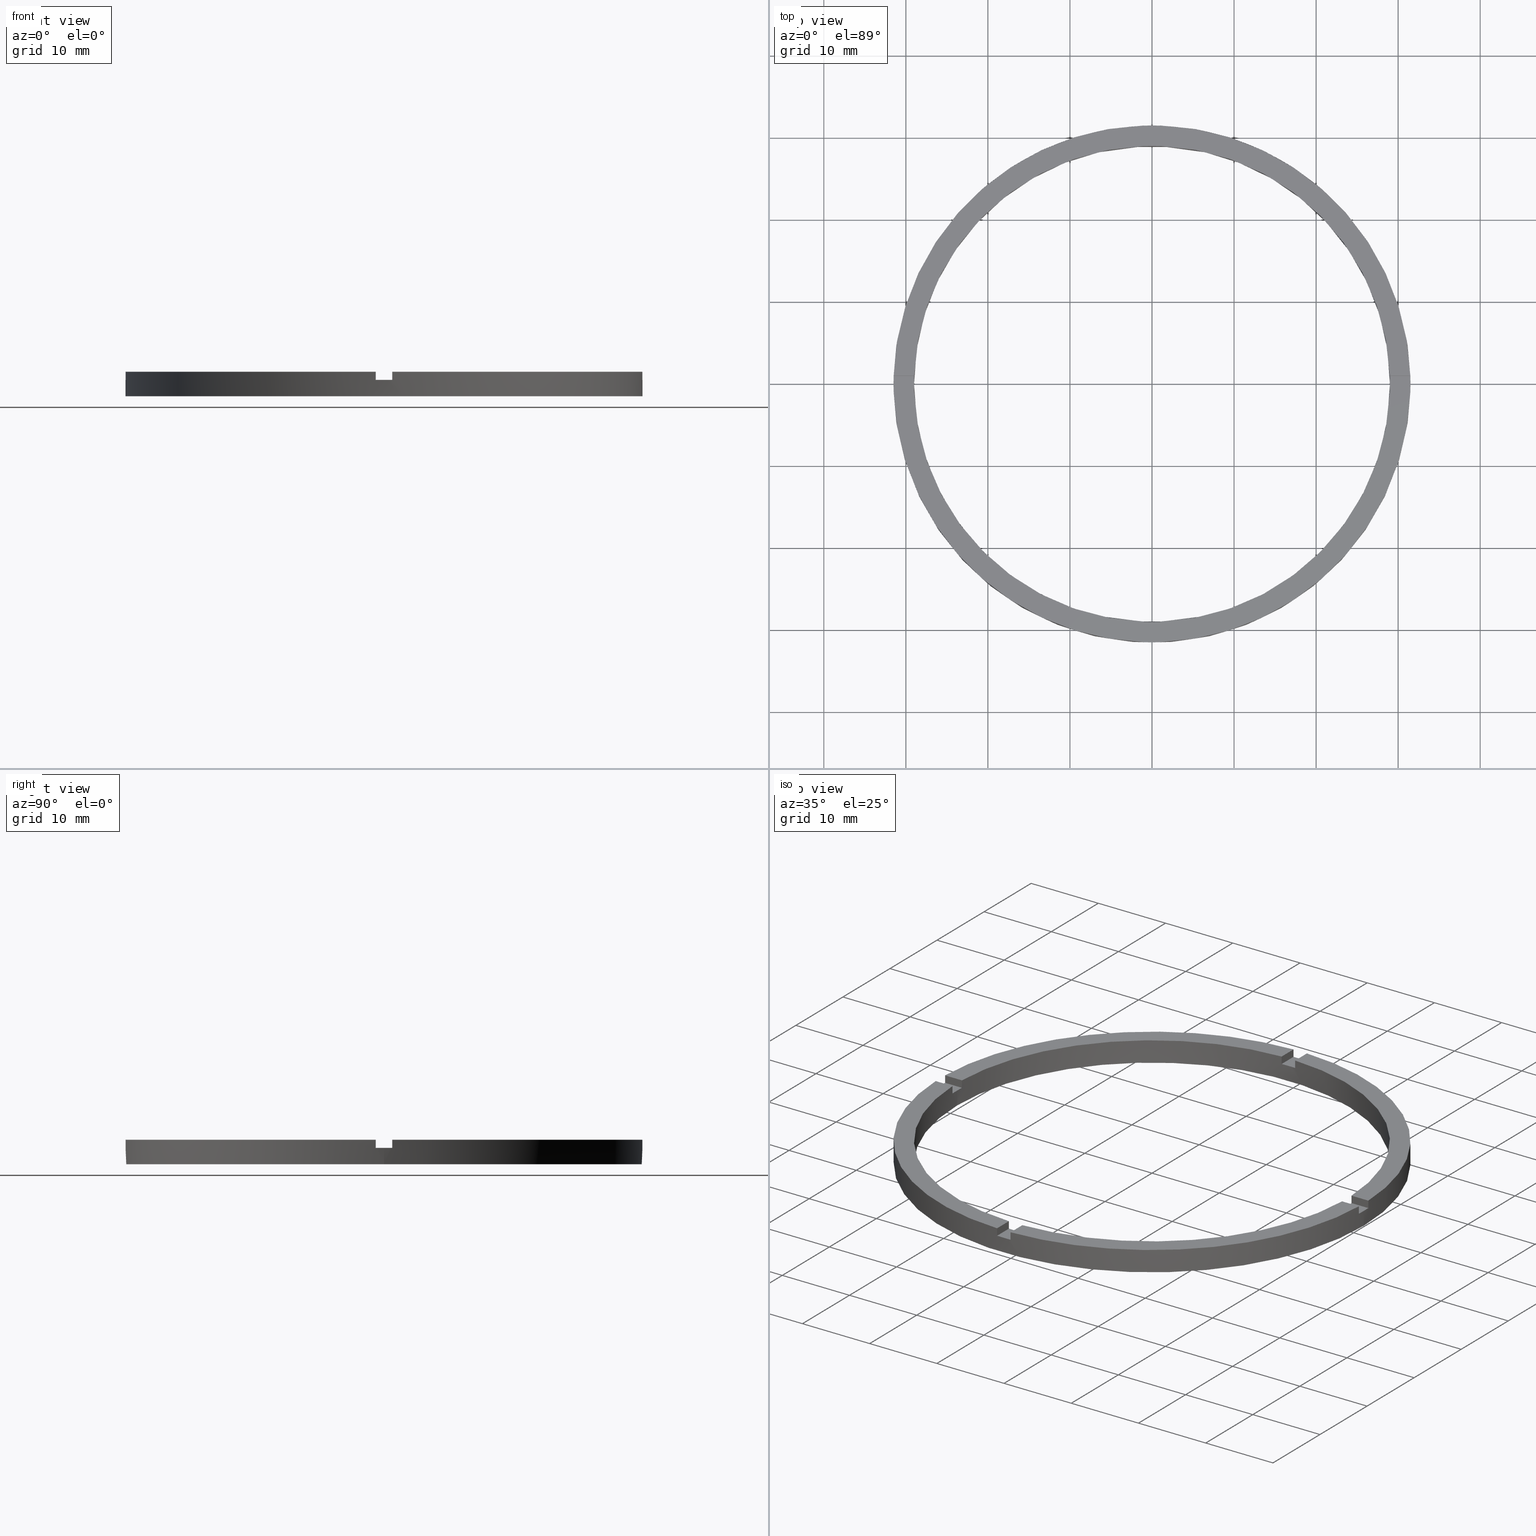
[diagram: canonical four-view strip — front | top / right | iso, engineering-drawing reading convention]
A machine part, canonical four-view strip (front | top / right | iso — engineering-drawing reading convention). The complete STEP part file that produces these views, byte-faithful:
ISO-10303-21;
HEADER;
FILE_DESCRIPTION (( 'STEP AP203' ),
    '1' );
FILE_NAME ('514131.step',
    '2024-12-26T02:40:29',
    ( 'MSI' ),
    ( '' ),
    'SwSTEP 2.0',
    'SolidWorks 2020',
    '' );
FILE_SCHEMA (( 'CONFIG_CONTROL_DESIGN' ));
ENDSEC;

DATA;
#1 = EDGE_LOOP ( 'NONE', ( #5, #175, #748, #690 ) ) ;
#2 = ORIENTED_EDGE ( 'NONE', *, *, #430, .T. ) ;
#3 = ORIENTED_EDGE ( 'NONE', *, *, #610, .T. ) ;
#4 = MANIFOLD_SOLID_BREP ( '�г�-����1', #243 ) ;
#5 = ORIENTED_EDGE ( 'NONE', *, *, #590, .F. ) ;
#6 = DIRECTION ( 'NONE',  ( 1.000000000000000000, 0.000000000000000000, 0.000000000000000000 ) ) ;
#7 = APPLICATION_PROTOCOL_DEFINITION ( 'international standard', 'config_control_design', 1994, #713 ) ;
#8 = DIRECTION ( 'NONE',  ( 1.000000000000000000, 0.000000000000000000, 0.000000000000000000 ) ) ;
#9 = PLANE ( 'NONE',  #244 ) ;
#10 = AXIS2_PLACEMENT_3D ( 'NONE', #635, #280, #287 ) ;
#11 = CARTESIAN_POINT ( 'NONE',  ( 31.48412298286233479, 0.9999999999998414602, 2.000000000000000000 ) ) ;
#12 = AXIS2_PLACEMENT_3D ( 'NONE', #755, #42, #539 ) ;
#13 = DIRECTION ( 'NONE',  ( 0.000000000000000000, 0.000000000000000000, 1.000000000000000000 ) ) ;
#14 = EDGE_CURVE ( 'NONE', #264, #201, #422, .T. ) ;
#15 = AXIS2_PLACEMENT_3D ( 'NONE', #52, #56, #446 ) ;
#16 = CARTESIAN_POINT ( 'NONE',  ( 0.9999999999998382405, -28.98275349237888321, 3.000000000000000000 ) ) ;
#17 = VECTOR ( 'NONE', #274, 1000.000000000000000 ) ;
#18 = CARTESIAN_POINT ( 'NONE',  ( 0.000000000000000000, 0.000000000000000000, 3.000000000000000000 ) ) ;
#19 = ORIENTED_EDGE ( 'NONE', *, *, #268, .F. ) ;
#20 = EDGE_CURVE ( 'NONE', #289, #250, #675, .T. ) ;
#21 = DIRECTION ( 'NONE',  ( -0.000000000000000000, -0.000000000000000000, -1.000000000000000000 ) ) ;
#22 = LINE ( 'NONE', #16, #295 ) ;
#23 = VERTEX_POINT ( 'NONE', #662 ) ;
#24 = VERTEX_POINT ( 'NONE', #733 ) ;
#25 = CC_DESIGN_PERSON_AND_ORGANIZATION_ASSIGNMENT ( #134, #656, ( #537 ) ) ;
#26 = PLANE ( 'NONE',  #469 ) ;
#27 = DIRECTION ( 'NONE',  ( 1.000000000000000000, 1.951563910473908228E-16, -0.000000000000000000 ) ) ;
#28 = CC_DESIGN_SECURITY_CLASSIFICATION ( #647, ( #416 ) ) ;
#29 = VERTEX_POINT ( 'NONE', #71 ) ;
#30 = CARTESIAN_POINT ( 'NONE',  ( -31.48412298286233124, 0.9999999999999742428, 3.000000000000000000 ) ) ;
#31 = PLANE ( 'NONE',  #403 ) ;
#32 = EDGE_LOOP ( 'NONE', ( #470, #450, #317, #457, #547, #167, #749, #491, #443, #499, #717, #742 ) ) ;
#33 = ORIENTED_EDGE ( 'NONE', *, *, #370, .T. ) ;
#34 = ORIENTED_EDGE ( 'NONE', *, *, #109, .T. ) ;
#35 = EDGE_LOOP ( 'NONE', ( #39, #760, #698, #493 ) ) ;
#36 = DIRECTION ( 'NONE',  ( 1.000000000000000000, 0.000000000000000000, 0.000000000000000000 ) ) ;
#37 = VERTEX_POINT ( 'NONE', #614 ) ;
#38 = ORIENTED_EDGE ( 'NONE', *, *, #242, .F. ) ;
#39 = ORIENTED_EDGE ( 'NONE', *, *, #232, .T. ) ;
#40 = VERTEX_POINT ( 'NONE', #74 ) ;
#41 = DIRECTION ( 'NONE',  ( 1.000000000000000000, 0.000000000000000000, 0.000000000000000000 ) ) ;
#42 = DIRECTION ( 'NONE',  ( 0.000000000000000000, 0.000000000000000000, 1.000000000000000000 ) ) ;
#43 = CARTESIAN_POINT ( 'NONE',  ( -1.000000000000161871, -28.98275349237887255, 3.000000000000000000 ) ) ;
#44 = ORIENTED_EDGE ( 'NONE', *, *, #765, .F. ) ;
#45 = VECTOR ( 'NONE', #425, 1000.000000000000000 ) ;
#46 = ADVANCED_FACE ( 'NONE', ( #165 ), #9, .F. ) ;
#47 = CIRCLE ( 'NONE', #144, 29.00000000000000000 ) ;
#48 = ORIENTED_EDGE ( 'NONE', *, *, #716, .F. ) ;
#49 = DIRECTION ( 'NONE',  ( 0.000000000000000000, 0.000000000000000000, 1.000000000000000000 ) ) ;
#50 = FACE_OUTER_BOUND ( 'NONE', #185, .T. ) ;
#51 = VERTEX_POINT ( 'NONE', #712 ) ;
#52 = CARTESIAN_POINT ( 'NONE',  ( 0.000000000000000000, 0.000000000000000000, 0.000000000000000000 ) ) ;
#53 = AXIS2_PLACEMENT_3D ( 'NONE', #490, #444, #664 ) ;
#54 = EDGE_CURVE ( 'NONE', #29, #451, #160, .T. ) ;
#55 = AXIS2_PLACEMENT_3D ( 'NONE', #428, #113, #57 ) ;
#56 = DIRECTION ( 'NONE',  ( 0.000000000000000000, 0.000000000000000000, 1.000000000000000000 ) ) ;
#57 = DIRECTION ( 'NONE',  ( 1.000000000000000000, 0.000000000000000000, 0.000000000000000000 ) ) ;
#58 = CARTESIAN_POINT ( 'NONE',  ( -31.50000000000000000, 0.000000000000000000, 2.000000000000000000 ) ) ;
#59 = DIRECTION ( 'NONE',  ( -1.000000000000000000, 0.000000000000000000, 0.000000000000000000 ) ) ;
#60 = CARTESIAN_POINT ( 'NONE',  ( -1.000000000000162759, -21.50000000000017764, 2.000000000000000000 ) ) ;
#61 = EDGE_CURVE ( 'NONE', #548, #37, #172, .T. ) ;
#62 = PLANE ( 'NONE',  #223 ) ;
#63 = DIRECTION ( 'NONE',  ( 0.000000000000000000, 0.000000000000000000, 1.000000000000000000 ) ) ;
#64 = CARTESIAN_POINT ( 'NONE',  ( -1.000000000000024425, 31.48412298286233124, 2.000000000000000000 ) ) ;
#65 = DIRECTION ( 'NONE',  ( 1.000000000000000000, 6.505213034913022906E-17, 0.000000000000000000 ) ) ;
#66 = CARTESIAN_POINT ( 'NONE',  ( 29.00000000000000000, 3.551475717527324030E-15, 3.000000000000000000 ) ) ;
#67 = CARTESIAN_POINT ( 'NONE',  ( 0.9999999999999754641, 28.98275349237887966, 3.000000000000000000 ) ) ;
#68 = DIRECTION ( 'NONE',  ( 0.000000000000000000, 0.000000000000000000, 1.000000000000000000 ) ) ;
#69 =( GEOMETRIC_REPRESENTATION_CONTEXT ( 3 ) GLOBAL_UNCERTAINTY_ASSIGNED_CONTEXT ( ( #630 ) ) GLOBAL_UNIT_ASSIGNED_CONTEXT ( ( #417, #587, #653 ) ) REPRESENTATION_CONTEXT ( 'NONE', 'WORKASPACE' ) );
#70 = DIRECTION ( 'NONE',  ( 1.000000000000000000, 0.000000000000000000, 0.000000000000000000 ) ) ;
#71 = CARTESIAN_POINT ( 'NONE',  ( 31.48412298286233479, 0.9999999999998414602, 3.000000000000000000 ) ) ;
#72 = CARTESIAN_POINT ( 'NONE',  ( -21.50000000000018119, -1.000000000000023981, 2.000000000000000000 ) ) ;
#73 = DIRECTION ( 'NONE',  ( 1.000000000000000000, 0.000000000000000000, -0.000000000000000000 ) ) ;
#74 = CARTESIAN_POINT ( 'NONE',  ( 0.9999999999998382405, -28.98275349237888321, 3.000000000000000000 ) ) ;
#75 = DIRECTION ( 'NONE',  ( -0.000000000000000000, -0.000000000000000000, -1.000000000000000000 ) ) ;
#76 = EDGE_CURVE ( 'NONE', #548, #297, #426, .T. ) ;
#77 = VECTOR ( 'NONE', #363, 1000.000000000000000 ) ;
#78 = CIRCLE ( 'NONE', #293, 29.00000000000000000 ) ;
#79 = EDGE_CURVE ( 'NONE', #250, #449, #689, .T. ) ;
#80 = VECTOR ( 'NONE', #75, 1000.000000000000000 ) ;
#81 = VECTOR ( 'NONE', #301, 1000.000000000000000 ) ;
#82 = FACE_OUTER_BOUND ( 'NONE', #246, .T. ) ;
#83 = DIRECTION ( 'NONE',  ( 0.000000000000000000, 0.000000000000000000, 1.000000000000000000 ) ) ;
#84 = DIRECTION ( 'NONE',  ( 0.000000000000000000, -0.000000000000000000, 1.000000000000000000 ) ) ;
#85 = PLANE ( 'NONE',  #697 ) ;
#86 = LINE ( 'NONE', #703, #595 ) ;
#87 = EDGE_CURVE ( 'NONE', #266, #550, #684, .T. ) ;
#88 = CIRCLE ( 'NONE', #15, 29.00000000000000000 ) ;
#89 = LINE ( 'NONE', #239, #81 ) ;
#90 = DIRECTION ( 'NONE',  ( -0.000000000000000000, -0.000000000000000000, -1.000000000000000000 ) ) ;
#91 = CARTESIAN_POINT ( 'NONE',  ( 0.000000000000000000, 0.000000000000000000, 2.000000000000000000 ) ) ;
#92 = VECTOR ( 'NONE', #146, 1000.000000000000000 ) ;
#93 = VECTOR ( 'NONE', #90, 1000.000000000000000 ) ;
#94 = CIRCLE ( 'NONE', #663, 31.50000000000000000 ) ;
#95 = VECTOR ( 'NONE', #231, 1000.000000000000000 ) ;
#96 = PLANE ( 'NONE',  #475 ) ;
#97 = CIRCLE ( 'NONE', #263, 31.50000000000000000 ) ;
#98 = LINE ( 'NONE', #255, #77 ) ;
#99 = AXIS2_PLACEMENT_3D ( 'NONE', #281, #84, #532 ) ;
#100 = LINE ( 'NONE', #676, #80 ) ;
#101 = CIRCLE ( 'NONE', #421, 31.50000000000000000 ) ;
#102 = DIRECTION ( 'NONE',  ( 0.000000000000000000, 0.000000000000000000, 1.000000000000000000 ) ) ;
#103 = AXIS2_PLACEMENT_3D ( 'NONE', #628, #83, #575 ) ;
#104 = FACE_OUTER_BOUND ( 'NONE', #200, .T. ) ;
#105 = FACE_BOUND ( 'NONE', #729, .T. ) ;
#106 = VECTOR ( 'NONE', #188, 1000.000000000000000 ) ;
#107 = AXIS2_PLACEMENT_3D ( 'NONE', #445, #525, #576 ) ;
#108 = LOCAL_TIME ( 10, 40, 29.00000000000000000, #396 ) ;
#109 = EDGE_CURVE ( 'NONE', #297, #447, #163, .T. ) ;
#110 = AXIS2_PLACEMENT_3D ( 'NONE', #319, #126, #240 ) ;
#111 = LOCAL_TIME ( 10, 40, 29.00000000000000000, #132 ) ;
#112 = DIRECTION ( 'NONE',  ( 0.000000000000000000, -0.000000000000000000, 1.000000000000000000 ) ) ;
#113 = DIRECTION ( 'NONE',  ( -0.000000000000000000, 0.000000000000000000, 1.000000000000000000 ) ) ;
#114 = APPROVAL_DATE_TIME ( #633, #657 ) ;
#115 = APPROVAL_PERSON_ORGANIZATION ( #642, #657, #142 ) ;
#116 = EDGE_CURVE ( 'NONE', #559, #261, #448, .T. ) ;
#117 = CIRCLE ( 'NONE', #333, 31.50000000000000000 ) ;
#118 = DATE_AND_TIME ( #638, #392 ) ;
#119 = DIRECTION ( 'NONE',  ( -0.000000000000000000, -0.000000000000000000, -1.000000000000000000 ) ) ;
#120 = DATE_AND_TIME ( #408, #130 ) ;
#121 = CARTESIAN_POINT ( 'NONE',  ( 21.49999999999999645, 0.9999999999998409050, 3.000000000000000000 ) ) ;
#122 = MECHANICAL_CONTEXT ( 'NONE', #545, 'mechanical' ) ;
#123 = PERSON_AND_ORGANIZATION ( #766, #637 ) ;
#124 = EDGE_CURVE ( 'NONE', #289, #732, #686, .T. ) ;
#125 = COORDINATED_UNIVERSAL_TIME_OFFSET ( 8, 0, .AHEAD. ) ;
#126 = DIRECTION ( 'NONE',  ( 0.000000000000000000, 0.000000000000000000, 1.000000000000000000 ) ) ;
#127 = EDGE_CURVE ( 'NONE', #773, #266, #693, .T. ) ;
#128 = DIRECTION ( 'NONE',  ( 1.000000000000000000, 1.951563910473908228E-16, -0.000000000000000000 ) ) ;
#129 = CARTESIAN_POINT ( 'NONE',  ( 0.9999999999998373523, -21.50000000000017764, 2.000000000000000000 ) ) ;
#130 = LOCAL_TIME ( 10, 40, 29.00000000000000000, #125 ) ;
#131 = CARTESIAN_POINT ( 'NONE',  ( 0.000000000000000000, 0.000000000000000000, 3.000000000000000000 ) ) ;
#132 = COORDINATED_UNIVERSAL_TIME_OFFSET ( 8, 0, .AHEAD. ) ;
#133 = DIRECTION ( 'NONE',  ( 0.000000000000000000, 0.000000000000000000, 1.000000000000000000 ) ) ;
#134 = PERSON_AND_ORGANIZATION ( #766, #637 ) ;
#135 = DIRECTION ( 'NONE',  ( 1.000000000000000000, 1.301042606982605074E-16, 0.000000000000000000 ) ) ;
#136 = DIRECTION ( 'NONE',  ( -1.951563910473908228E-16, 1.000000000000000000, 0.000000000000000000 ) ) ;
#137 = CALENDAR_DATE ( 2024, 26, 12 ) ;
#138 = CARTESIAN_POINT ( 'NONE',  ( 0.000000000000000000, 0.000000000000000000, 2.000000000000000000 ) ) ;
#139 = DIRECTION ( 'NONE',  ( 1.301042606982605074E-16, -1.000000000000000000, 0.000000000000000000 ) ) ;
#140 = AXIS2_PLACEMENT_3D ( 'NONE', #18, #13, #502 ) ;
#141 = DIRECTION ( 'NONE',  ( -1.000000000000000000, -6.505213034913022906E-17, 0.000000000000000000 ) ) ;
#142 = APPROVAL_ROLE ( '' ) ;
#143 = AXIS2_PLACEMENT_3D ( 'NONE', #91, #225, #344 ) ;
#144 = AXIS2_PLACEMENT_3D ( 'NONE', #437, #570, #736 ) ;
#145 = CARTESIAN_POINT ( 'NONE',  ( -31.50000000000000000, 0.000000000000000000, 3.000000000000000000 ) ) ;
#146 = DIRECTION ( 'NONE',  ( -1.000000000000000000, -1.951563910473908228E-16, 0.000000000000000000 ) ) ;
#147 = AXIS2_PLACEMENT_3D ( 'NONE', #629, #737, #141 ) ;
#148 = ADVANCED_FACE ( 'NONE', ( #435 ), #440, .F. ) ;
#149 = EDGE_CURVE ( 'NONE', #510, #449, #174, .T. ) ;
#150 = PLANE ( 'NONE',  #147 ) ;
#151 = DATE_TIME_ROLE ( 'creation_date' ) ;
#152 = EDGE_CURVE ( 'NONE', #23, #205, #177, .T. ) ;
#153 = CARTESIAN_POINT ( 'NONE',  ( -31.48412298286233124, -1.000000000000025757, 2.000000000000000000 ) ) ;
#154 = EDGE_CURVE ( 'NONE', #769, #778, #464, .T. ) ;
#155 = CC_DESIGN_APPROVAL ( #677, ( #647 ) ) ;
#156 = ORIENTED_EDGE ( 'NONE', *, *, #777, .T. ) ;
#157 = VECTOR ( 'NONE', #27, 1000.000000000000000 ) ;
#158 = DIRECTION ( 'NONE',  ( 1.000000000000000000, 0.000000000000000000, 0.000000000000000000 ) ) ;
#159 = CARTESIAN_POINT ( 'NONE',  ( -28.98275349237887610, -1.000000000000025313, 2.000000000000000000 ) ) ;
#160 = LINE ( 'NONE', #121, #434 ) ;
#161 = CARTESIAN_POINT ( 'NONE',  ( 28.98275349237887255, -1.000000000000158540, 2.000000000000000000 ) ) ;
#162 = CARTESIAN_POINT ( 'NONE',  ( 0.000000000000000000, 0.000000000000000000, 2.000000000000000000 ) ) ;
#163 = CIRCLE ( 'NONE', #655, 31.50000000000000000 ) ;
#164 = ORIENTED_EDGE ( 'NONE', *, *, #673, .T. ) ;
#165 = FACE_OUTER_BOUND ( 'NONE', #35, .T. ) ;
#166 = ADVANCED_BREP_SHAPE_REPRESENTATION ( '514131', ( #4, #752 ), #69 ) ;
#167 = ORIENTED_EDGE ( 'NONE', *, *, #79, .F. ) ;
#168 = DIRECTION ( 'NONE',  ( 1.000000000000000000, 0.000000000000000000, 0.000000000000000000 ) ) ;
#169 = VECTOR ( 'NONE', #284, 1000.000000000000000 ) ;
#170 = DIRECTION ( 'NONE',  ( 0.000000000000000000, 0.000000000000000000, 1.000000000000000000 ) ) ;
#171 = ORIENTED_EDGE ( 'NONE', *, *, #76, .F. ) ;
#172 = CIRCLE ( 'NONE', #685, 29.00000000000000000 ) ;
#173 = ORIENTED_EDGE ( 'NONE', *, *, #409, .T. ) ;
#174 = LINE ( 'NONE', #365, #692 ) ;
#175 = ORIENTED_EDGE ( 'NONE', *, *, #757, .T. ) ;
#176 = CARTESIAN_POINT ( 'NONE',  ( 0.000000000000000000, 0.000000000000000000, 2.000000000000000000 ) ) ;
#177 = LINE ( 'NONE', #497, #196 ) ;
#178 = AXIS2_PLACEMENT_3D ( 'NONE', #666, #668, #70 ) ;
#179 = ORIENTED_EDGE ( 'NONE', *, *, #479, .F. ) ;
#180 = DIRECTION ( 'NONE',  ( -1.301042606982605074E-16, 1.000000000000000000, 0.000000000000000000 ) ) ;
#181 = ORIENTED_EDGE ( 'NONE', *, *, #285, .F. ) ;
#182 = DIRECTION ( 'NONE',  ( -0.000000000000000000, -0.000000000000000000, -1.000000000000000000 ) ) ;
#183 = ORIENTED_EDGE ( 'NONE', *, *, #336, .T. ) ;
#184 = EDGE_CURVE ( 'NONE', #776, #510, #117, .T. ) ;
#185 = EDGE_LOOP ( 'NONE', ( #290, #218, #237, #19 ) ) ;
#186 = CARTESIAN_POINT ( 'NONE',  ( 0.9999999999998386846, -31.48412298286233479, 3.000000000000000000 ) ) ;
#187 = CC_DESIGN_PERSON_AND_ORGANIZATION_ASSIGNMENT ( #390, #193, ( #416 ) ) ;
#188 = DIRECTION ( 'NONE',  ( -0.000000000000000000, -0.000000000000000000, -1.000000000000000000 ) ) ;
#189 = DIRECTION ( 'NONE',  ( 1.000000000000000000, 0.000000000000000000, 0.000000000000000000 ) ) ;
#190 = EDGE_CURVE ( 'NONE', #451, #772, #378, .T. ) ;
#191 = ORIENTED_EDGE ( 'NONE', *, *, #154, .T. ) ;
#192 = ORIENTED_EDGE ( 'NONE', *, *, #777, .F. ) ;
#193 = PERSON_AND_ORGANIZATION_ROLE ( 'creator' ) ;
#194 = ORIENTED_EDGE ( 'NONE', *, *, #127, .F. ) ;
#195 = CARTESIAN_POINT ( 'NONE',  ( 0.000000000000000000, 0.000000000000000000, 3.000000000000000000 ) ) ;
#196 = VECTOR ( 'NONE', #556, 1000.000000000000000 ) ;
#197 = ORIENTED_EDGE ( 'NONE', *, *, #615, .F. ) ;
#198 = CARTESIAN_POINT ( 'NONE',  ( 0.000000000000000000, 0.000000000000000000, 2.000000000000000000 ) ) ;
#199 = EDGE_CURVE ( 'NONE', #773, #509, #388, .T. ) ;
#200 = EDGE_LOOP ( 'NONE', ( #233, #467, #308, #738 ) ) ;
#201 = VERTEX_POINT ( 'NONE', #726 ) ;
#202 = ORIENTED_EDGE ( 'NONE', *, *, #771, .T. ) ;
#203 = DIRECTION ( 'NONE',  ( -1.000000000000000000, -6.505213034913022906E-17, -0.000000000000000000 ) ) ;
#204 = DIRECTION ( 'NONE',  ( -0.000000000000000000, -0.000000000000000000, -1.000000000000000000 ) ) ;
#205 = VERTEX_POINT ( 'NONE', #328 ) ;
#206 = ORIENTED_EDGE ( 'NONE', *, *, #277, .F. ) ;
#207 = DIRECTION ( 'NONE',  ( 0.000000000000000000, 0.000000000000000000, 1.000000000000000000 ) ) ;
#208 = DIRECTION ( 'NONE',  ( 1.000000000000000000, 0.000000000000000000, 0.000000000000000000 ) ) ;
#209 = ORIENTED_EDGE ( 'NONE', *, *, #651, .T. ) ;
#210 = ORIENTED_EDGE ( 'NONE', *, *, #780, .F. ) ;
#211 = ORIENTED_EDGE ( 'NONE', *, *, #673, .F. ) ;
#212 = CARTESIAN_POINT ( 'NONE',  ( 0.000000000000000000, 0.000000000000000000, 0.000000000000000000 ) ) ;
#213 = ORIENTED_EDGE ( 'NONE', *, *, #580, .F. ) ;
#214 = EDGE_LOOP ( 'NONE', ( #202, #699, #463, #236, #753, #458 ) ) ;
#215 = DATE_TIME_ROLE ( 'classification_date' ) ;
#216 = AXIS2_PLACEMENT_3D ( 'NONE', #357, #648, #59 ) ;
#217 = ORIENTED_EDGE ( 'NONE', *, *, #116, .F. ) ;
#218 = ORIENTED_EDGE ( 'NONE', *, *, #780, .T. ) ;
#219 = CARTESIAN_POINT ( 'NONE',  ( 31.50000000000000000, 3.857637417314162689E-15, 3.000000000000000000 ) ) ;
#220 = ADVANCED_FACE ( 'NONE', ( #104 ), #524, .T. ) ;
#221 = DIRECTION ( 'NONE',  ( 1.301042606982605074E-16, -1.000000000000000000, 0.000000000000000000 ) ) ;
#222 = CARTESIAN_POINT ( 'NONE',  ( 0.9999999999999754641, 31.48412298286233124, 3.000000000000000000 ) ) ;
#223 = AXIS2_PLACEMENT_3D ( 'NONE', #60, #310, #481 ) ;
#224 = EDGE_LOOP ( 'NONE', ( #171, #33, #164, #179 ) ) ;
#225 = DIRECTION ( 'NONE',  ( 0.000000000000000000, 0.000000000000000000, 1.000000000000000000 ) ) ;
#226 = FACE_OUTER_BOUND ( 'NONE', #522, .T. ) ;
#227 = EDGE_LOOP ( 'NONE', ( #296, #700, #705, #696 ) ) ;
#228 = CIRCLE ( 'NONE', #600, 31.50000000000000000 ) ;
#229 = ORIENTED_EDGE ( 'NONE', *, *, #109, .F. ) ;
#230 = AXIS2_PLACEMENT_3D ( 'NONE', #728, #136, #329 ) ;
#231 = DIRECTION ( 'NONE',  ( 0.000000000000000000, 0.000000000000000000, 1.000000000000000000 ) ) ;
#232 = EDGE_CURVE ( 'NONE', #533, #40, #632, .T. ) ;
#233 = ORIENTED_EDGE ( 'NONE', *, *, #439, .F. ) ;
#234 = ORIENTED_EDGE ( 'NONE', *, *, #149, .F. ) ;
#235 = ORIENTED_EDGE ( 'NONE', *, *, #199, .F. ) ;
#236 = ORIENTED_EDGE ( 'NONE', *, *, #238, .F. ) ;
#237 = ORIENTED_EDGE ( 'NONE', *, *, #474, .T. ) ;
#238 = EDGE_CURVE ( 'NONE', #23, #449, #382, .T. ) ;
#239 = CARTESIAN_POINT ( 'NONE',  ( -1.000000000000024425, 21.50000000000000000, 3.000000000000000000 ) ) ;
#240 = DIRECTION ( 'NONE',  ( 1.000000000000000000, 0.000000000000000000, 0.000000000000000000 ) ) ;
#241 = ORIENTED_EDGE ( 'NONE', *, *, #580, .T. ) ;
#242 = EDGE_CURVE ( 'NONE', #250, #512, #727, .T. ) ;
#243 = CLOSED_SHELL ( 'NONE', ( #148, #455, #383, #270, #220, #343, #725, #583, #465, #326, #339, #608, #46, #429, #397, #665, #530, #375, #578, #283, #560 ) ) ;
#244 = AXIS2_PLACEMENT_3D ( 'NONE', #320, #135, #180 ) ;
#245 = EDGE_LOOP ( 'NONE', ( #314, #714, #234, #181 ) ) ;
#246 = EDGE_LOOP ( 'NONE', ( #267, #764, #269, #507, #564, #709, #552, #191, #542, #504, #197, #669 ) ) ;
#247 = FACE_OUTER_BOUND ( 'NONE', #1, .T. ) ;
#248 = CARTESIAN_POINT ( 'NONE',  ( -1.000000000000024425, 31.48412298286233124, 3.000000000000000000 ) ) ;
#249 = VERTEX_POINT ( 'NONE', #341 ) ;
#250 = VERTEX_POINT ( 'NONE', #754 ) ;
#251 = FACE_OUTER_BOUND ( 'NONE', #498, .T. ) ;
#252 = CC_DESIGN_DATE_AND_TIME_ASSIGNMENT ( #120, #215, ( #647 ) ) ;
#253 = EDGE_LOOP ( 'NONE', ( #34, #183, #292, #546 ) ) ;
#254 = EDGE_LOOP ( 'NONE', ( #206, #44 ) ) ;
#255 = CARTESIAN_POINT ( 'NONE',  ( -1.000000000000161426, -31.48412298286232414, 3.000000000000000000 ) ) ;
#256 = ORIENTED_EDGE ( 'NONE', *, *, #14, .F. ) ;
#257 = DIRECTION ( 'NONE',  ( -1.000000000000000000, 0.000000000000000000, 0.000000000000000000 ) ) ;
#258 = DIRECTION ( 'NONE',  ( 1.000000000000000000, 0.000000000000000000, 0.000000000000000000 ) ) ;
#259 = ORIENTED_EDGE ( 'NONE', *, *, #521, .F. ) ;
#260 = CARTESIAN_POINT ( 'NONE',  ( 0.000000000000000000, 0.000000000000000000, 3.000000000000000000 ) ) ;
#261 = VERTEX_POINT ( 'NONE', #452 ) ;
#262 = CARTESIAN_POINT ( 'NONE',  ( -28.98275349237887610, -1.000000000000025313, 3.000000000000000000 ) ) ;
#263 = AXIS2_PLACEMENT_3D ( 'NONE', #538, #49, #208 ) ;
#264 = VERTEX_POINT ( 'NONE', #531 ) ;
#265 = CARTESIAN_POINT ( 'NONE',  ( 21.49999999999999645, -1.000000000000159206, 2.000000000000000000 ) ) ;
#266 = VERTEX_POINT ( 'NONE', #581 ) ;
#267 = ORIENTED_EDGE ( 'NONE', *, *, #346, .F. ) ;
#268 = EDGE_CURVE ( 'NONE', #527, #557, #483, .T. ) ;
#269 = ORIENTED_EDGE ( 'NONE', *, *, #765, .T. ) ;
#270 = ADVANCED_FACE ( 'NONE', ( #226 ), #519, .T. ) ;
#271 = ORIENTED_EDGE ( 'NONE', *, *, #528, .T. ) ;
#272 = CARTESIAN_POINT ( 'NONE',  ( -1.000000000000024425, 31.48412298286233124, 3.000000000000000000 ) ) ;
#273 = ORIENTED_EDGE ( 'NONE', *, *, #707, .T. ) ;
#274 = DIRECTION ( 'NONE',  ( 0.000000000000000000, 0.000000000000000000, 1.000000000000000000 ) ) ;
#275 = CARTESIAN_POINT ( 'NONE',  ( 21.49999999999999645, 0.9999999999998409050, 2.000000000000000000 ) ) ;
#276 = CARTESIAN_POINT ( 'NONE',  ( 0.9999999999999754641, 21.50000000000000000, 3.000000000000000000 ) ) ;
#277 = EDGE_CURVE ( 'NONE', #715, #201, #228, .T. ) ;
#278 = CARTESIAN_POINT ( 'NONE',  ( -1.000000000000161426, -31.48412298286232414, 3.000000000000000000 ) ) ;
#279 = PERSON_AND_ORGANIZATION_ROLE ( 'design_supplier' ) ;
#280 = DIRECTION ( 'NONE',  ( 0.000000000000000000, 0.000000000000000000, 1.000000000000000000 ) ) ;
#281 = CARTESIAN_POINT ( 'NONE',  ( 0.000000000000000000, 0.000000000000000000, 2.000000000000000000 ) ) ;
#282 = DIRECTION ( 'NONE',  ( 0.000000000000000000, -0.000000000000000000, 1.000000000000000000 ) ) ;
#283 = ADVANCED_FACE ( 'NONE', ( #734 ), #722, .F. ) ;
#284 = DIRECTION ( 'NONE',  ( -0.000000000000000000, -0.000000000000000000, -1.000000000000000000 ) ) ;
#285 = EDGE_CURVE ( 'NONE', #289, #510, #486, .T. ) ;
#286 = FACE_OUTER_BOUND ( 'NONE', #245, .T. ) ;
#287 = DIRECTION ( 'NONE',  ( 1.000000000000000000, 0.000000000000000000, -0.000000000000000000 ) ) ;
#288 = CARTESIAN_POINT ( 'NONE',  ( 31.48412298286233479, 0.9999999999998414602, 3.000000000000000000 ) ) ;
#289 = VERTEX_POINT ( 'NONE', #505 ) ;
#290 = ORIENTED_EDGE ( 'NONE', *, *, #553, .F. ) ;
#291 = LINE ( 'NONE', #129, #45 ) ;
#292 = ORIENTED_EDGE ( 'NONE', *, *, #61, .F. ) ;
#293 = AXIS2_PLACEMENT_3D ( 'NONE', #176, #102, #8 ) ;
#294 = VERTEX_POINT ( 'NONE', #323 ) ;
#295 = VECTOR ( 'NONE', #719, 1000.000000000000000 ) ;
#296 = ORIENTED_EDGE ( 'NONE', *, *, #54, .T. ) ;
#297 = VERTEX_POINT ( 'NONE', #674 ) ;
#298 = VERTEX_POINT ( 'NONE', #11 ) ;
#299 = AXIS2_PLACEMENT_3D ( 'NONE', #461, #399, #41 ) ;
#300 = ORIENTED_EDGE ( 'NONE', *, *, #590, .T. ) ;
#301 = DIRECTION ( 'NONE',  ( -0.000000000000000000, -1.000000000000000000, -0.000000000000000000 ) ) ;
#302 = AXIS2_PLACEMENT_3D ( 'NONE', #395, #682, #572 ) ;
#303 = ORIENTED_EDGE ( 'NONE', *, *, #414, .T. ) ;
#304 = ORIENTED_EDGE ( 'NONE', *, *, #377, .T. ) ;
#305 = DIRECTION ( 'NONE',  ( 1.000000000000000000, 0.000000000000000000, 0.000000000000000000 ) ) ;
#306 = EDGE_CURVE ( 'NONE', #773, #249, #543, .T. ) ;
#307 = ORIENTED_EDGE ( 'NONE', *, *, #124, .T. ) ;
#308 = ORIENTED_EDGE ( 'NONE', *, *, #232, .F. ) ;
#309 = CARTESIAN_POINT ( 'NONE',  ( 0.000000000000000000, 0.000000000000000000, 2.000000000000000000 ) ) ;
#310 = DIRECTION ( 'NONE',  ( -1.000000000000000000, -1.301042606982605074E-16, 0.000000000000000000 ) ) ;
#311 = VECTOR ( 'NONE', #331, 1000.000000000000000 ) ;
#312 = EDGE_CURVE ( 'NONE', #40, #37, #22, .T. ) ;
#313 = LINE ( 'NONE', #612, #315 ) ;
#314 = ORIENTED_EDGE ( 'NONE', *, *, #20, .T. ) ;
#315 = VECTOR ( 'NONE', #133, 1000.000000000000000 ) ;
#316 = ORIENTED_EDGE ( 'NONE', *, *, #414, .F. ) ;
#317 = ORIENTED_EDGE ( 'NONE', *, *, #528, .F. ) ;
#318 = EDGE_CURVE ( 'NONE', #456, #559, #566, .T. ) ;
#319 = CARTESIAN_POINT ( 'NONE',  ( 0.000000000000000000, 0.000000000000000000, 0.000000000000000000 ) ) ;
#320 = CARTESIAN_POINT ( 'NONE',  ( 0.9999999999998373523, -21.50000000000017764, 2.000000000000000000 ) ) ;
#321 = DIRECTION ( 'NONE',  ( 0.000000000000000000, 1.000000000000000000, 0.000000000000000000 ) ) ;
#322 = DIRECTION ( 'NONE',  ( 0.000000000000000000, 1.000000000000000000, 0.000000000000000000 ) ) ;
#323 = CARTESIAN_POINT ( 'NONE',  ( -1.000000000000024425, 28.98275349237887610, 3.000000000000000000 ) ) ;
#324 = AXIS2_PLACEMENT_3D ( 'NONE', #607, #63, #330 ) ;
#325 = DIRECTION ( 'NONE',  ( 1.000000000000000000, 6.505213034913022906E-17, 0.000000000000000000 ) ) ;
#326 = ADVANCED_FACE ( 'NONE', ( #286 ), #744, .F. ) ;
#327 = DIRECTION ( 'NONE',  ( 0.000000000000000000, 0.000000000000000000, -1.000000000000000000 ) ) ;
#328 = CARTESIAN_POINT ( 'NONE',  ( -29.00000000000000000, 0.000000000000000000, 0.000000000000000000 ) ) ;
#329 = DIRECTION ( 'NONE',  ( -1.000000000000000000, -1.951563910473908228E-16, 0.000000000000000000 ) ) ;
#330 = DIRECTION ( 'NONE',  ( 1.000000000000000000, 0.000000000000000000, 0.000000000000000000 ) ) ;
#331 = DIRECTION ( 'NONE',  ( 0.000000000000000000, 0.000000000000000000, 1.000000000000000000 ) ) ;
#332 = DIRECTION ( 'NONE',  ( 1.000000000000000000, 0.000000000000000000, 0.000000000000000000 ) ) ;
#333 = AXIS2_PLACEMENT_3D ( 'NONE', #601, #68, #720 ) ;
#334 = CARTESIAN_POINT ( 'NONE',  ( 0.9999999999998373523, -21.50000000000017764, 3.000000000000000000 ) ) ;
#335 = DIRECTION ( 'NONE',  ( -0.000000000000000000, -0.000000000000000000, -1.000000000000000000 ) ) ;
#336 = EDGE_CURVE ( 'NONE', #447, #37, #291, .T. ) ;
#337 = AXIS2_PLACEMENT_3D ( 'NONE', #260, #650, #544 ) ;
#338 = CC_DESIGN_APPROVAL ( #385, ( #485 ) ) ;
#339 = ADVANCED_FACE ( 'NONE', ( #50 ), #500, .F. ) ;
#340 = EDGE_CURVE ( 'NONE', #451, #559, #47, .T. ) ;
#341 = CARTESIAN_POINT ( 'NONE',  ( 28.98275349237887255, -1.000000000000158540, 3.000000000000000000 ) ) ;
#342 = CARTESIAN_POINT ( 'NONE',  ( -31.50000000000000000, 0.000000000000000000, 0.000000000000000000 ) ) ;
#343 = ADVANCED_FACE ( 'NONE', ( #565 ), #394, .T. ) ;
#344 = DIRECTION ( 'NONE',  ( 1.000000000000000000, 0.000000000000000000, 0.000000000000000000 ) ) ;
#345 = CC_DESIGN_APPROVAL ( #657, ( #416 ) ) ;
#346 = EDGE_CURVE ( 'NONE', #264, #298, #567, .T. ) ;
#347 = VECTOR ( 'NONE', #119, 1000.000000000000000 ) ;
#348 = FACE_OUTER_BOUND ( 'NONE', #438, .T. ) ;
#349 = VECTOR ( 'NONE', #400, 1000.000000000000000 ) ;
#350 = LINE ( 'NONE', #746, #92 ) ;
#351 = CARTESIAN_POINT ( 'NONE',  ( 28.98275349237888321, 0.9999999999998414602, 3.000000000000000000 ) ) ;
#352 = VECTOR ( 'NONE', #335, 1000.000000000000000 ) ;
#353 = AXIS2_PLACEMENT_3D ( 'NONE', #162, #701, #541 ) ;
#354 = CIRCLE ( 'NONE', #107, 31.50000000000000000 ) ;
#355 = LINE ( 'NONE', #478, #619 ) ;
#356 = CIRCLE ( 'NONE', #143, 31.50000000000000000 ) ;
#357 = CARTESIAN_POINT ( 'NONE',  ( 0.000000000000000000, 0.000000000000000000, 3.000000000000000000 ) ) ;
#358 = CYLINDRICAL_SURFACE ( 'NONE', #337, 29.00000000000000000 ) ;
#359 = FACE_OUTER_BOUND ( 'NONE', #515, .T. ) ;
#360 = DIRECTION ( 'NONE',  ( 0.000000000000000000, 0.000000000000000000, 1.000000000000000000 ) ) ;
#361 = CIRCLE ( 'NONE', #99, 29.00000000000000000 ) ;
#362 = FACE_OUTER_BOUND ( 'NONE', #227, .T. ) ;
#363 = DIRECTION ( 'NONE',  ( 0.000000000000000000, 0.000000000000000000, 1.000000000000000000 ) ) ;
#364 = CIRCLE ( 'NONE', #741, 29.00000000000000000 ) ;
#365 = CARTESIAN_POINT ( 'NONE',  ( -21.50000000000018119, -1.000000000000023981, 2.000000000000000000 ) ) ;
#366 = LINE ( 'NONE', #494, #611 ) ;
#367 = APPROVAL_STATUS ( 'not_yet_approved' ) ;
#368 = LINE ( 'NONE', #405, #349 ) ;
#369 = FACE_OUTER_BOUND ( 'NONE', #254, .T. ) ;
#370 = EDGE_CURVE ( 'NONE', #548, #512, #313, .T. ) ;
#371 = FACE_OUTER_BOUND ( 'NONE', #513, .T. ) ;
#372 = DIRECTION ( 'NONE',  ( -1.000000000000000000, -6.505213034913022906E-17, -0.000000000000000000 ) ) ;
#373 = LINE ( 'NONE', #288, #352 ) ;
#374 = VECTOR ( 'NONE', #360, 1000.000000000000000 ) ;
#375 = ADVANCED_FACE ( 'NONE', ( #251 ), #26, .T. ) ;
#376 = VECTOR ( 'NONE', #549, 1000.000000000000000 ) ;
#377 = EDGE_CURVE ( 'NONE', #298, #772, #763, .T. ) ;
#378 = LINE ( 'NONE', #389, #106 ) ;
#379 = DIRECTION ( 'NONE',  ( -0.000000000000000000, -0.000000000000000000, -1.000000000000000000 ) ) ;
#380 = APPROVAL_PERSON_ORGANIZATION ( #407, #385, #489 ) ;
#381 = CALENDAR_DATE ( 2024, 26, 12 ) ;
#382 = CIRCLE ( 'NONE', #299, 29.00000000000000000 ) ;
#383 = ADVANCED_FACE ( 'NONE', ( #247 ), #723, .T. ) ;
#384 = EDGE_CURVE ( 'NONE', #294, #751, #514, .T. ) ;
#385 = APPROVAL ( #367, 'δָ��' ) ;
#386 = DIRECTION ( 'NONE',  ( 1.000000000000000000, 0.000000000000000000, -0.000000000000000000 ) ) ;
#387 = PERSON_AND_ORGANIZATION ( #766, #637 ) ;
#388 = LINE ( 'NONE', #265, #634 ) ;
#389 = CARTESIAN_POINT ( 'NONE',  ( 28.98275349237888321, 0.9999999999998414602, 3.000000000000000000 ) ) ;
#390 = PERSON_AND_ORGANIZATION ( #766, #637 ) ;
#391 = DATE_AND_TIME ( #381, #649 ) ;
#392 = LOCAL_TIME ( 10, 40, 29.00000000000000000, #639 ) ;
#393 = PERSON_AND_ORGANIZATION ( #766, #637 ) ;
#394 = PLANE ( 'NONE',  #518 ) ;
#395 = CARTESIAN_POINT ( 'NONE',  ( 0.000000000000000000, 0.000000000000000000, 3.000000000000000000 ) ) ;
#396 = COORDINATED_UNIVERSAL_TIME_OFFSET ( 8, 0, .AHEAD. ) ;
#397 = ADVANCED_FACE ( 'NONE', ( #517 ), #415, .T. ) ;
#398 = SHAPE_DEFINITION_REPRESENTATION ( #781, #166 ) ;
#399 = DIRECTION ( 'NONE',  ( 0.000000000000000000, 0.000000000000000000, 1.000000000000000000 ) ) ;
#400 = DIRECTION ( 'NONE',  ( 0.000000000000000000, 0.000000000000000000, 1.000000000000000000 ) ) ;
#401 = DESIGN_CONTEXT ( 'detailed design', #713, 'design' ) ;
#402 = COORDINATED_UNIVERSAL_TIME_OFFSET ( 8, 0, .AHEAD. ) ;
#403 = AXIS2_PLACEMENT_3D ( 'NONE', #212, #767, #453 ) ;
#404 = DIRECTION ( 'NONE',  ( -1.301042606982605074E-16, 1.000000000000000000, -0.000000000000000000 ) ) ;
#405 = CARTESIAN_POINT ( 'NONE',  ( 31.48412298286232414, -1.000000000000158540, 3.000000000000000000 ) ) ;
#406 = APPROVAL_PERSON_ORGANIZATION ( #393, #677, #758 ) ;
#407 = PERSON_AND_ORGANIZATION ( #766, #637 ) ;
#408 = CALENDAR_DATE ( 2024, 26, 12 ) ;
#409 = EDGE_CURVE ( 'NONE', #533, #447, #775, .T. ) ;
#410 = DIRECTION ( 'NONE',  ( 1.000000000000000000, 6.505213034913022906E-17, 0.000000000000000000 ) ) ;
#411 = CC_DESIGN_PERSON_AND_ORGANIZATION_ASSIGNMENT ( #123, #573, ( #647 ) ) ;
#412 = CARTESIAN_POINT ( 'NONE',  ( 0.000000000000000000, 0.000000000000000000, 3.000000000000000000 ) ) ;
#413 = CARTESIAN_POINT ( 'NONE',  ( 0.000000000000000000, 0.000000000000000000, 2.000000000000000000 ) ) ;
#414 = EDGE_CURVE ( 'NONE', #778, #568, #605, .T. ) ;
#415 = PLANE ( 'NONE',  #55 ) ;
#416 = PRODUCT_DEFINITION_FORMATION_WITH_SPECIFIED_SOURCE ( '�κ�', '', #537, .NOT_KNOWN. ) ;
#417 =( LENGTH_UNIT ( ) NAMED_UNIT ( * ) SI_UNIT ( .MILLI., .METRE. ) );
#418 = CARTESIAN_POINT ( 'NONE',  ( -1.000000000000024425, 21.50000000000000000, 2.000000000000000000 ) ) ;
#419 = PERSON_AND_ORGANIZATION_ROLE ( 'creator' ) ;
#420 = DIRECTION ( 'NONE',  ( 0.000000000000000000, 0.000000000000000000, 1.000000000000000000 ) ) ;
#421 = AXIS2_PLACEMENT_3D ( 'NONE', #745, #207, #36 ) ;
#422 = LINE ( 'NONE', #219, #169 ) ;
#423 = DIRECTION ( 'NONE',  ( 1.000000000000000000, 0.000000000000000000, 0.000000000000000000 ) ) ;
#424 = CARTESIAN_POINT ( 'NONE',  ( -21.50000000000018119, -1.000000000000023981, 3.000000000000000000 ) ) ;
#425 = DIRECTION ( 'NONE',  ( -1.301042606982605074E-16, 1.000000000000000000, -0.000000000000000000 ) ) ;
#426 = LINE ( 'NONE', #660, #679 ) ;
#427 = VECTOR ( 'NONE', #503, 1000.000000000000000 ) ;
#428 = CARTESIAN_POINT ( 'NONE',  ( 0.000000000000000000, 0.000000000000000000, 2.000000000000000000 ) ) ;
#429 = ADVANCED_FACE ( 'NONE', ( #602 ), #62, .F. ) ;
#430 = EDGE_CURVE ( 'NONE', #266, #772, #78, .T. ) ;
#431 = DIRECTION ( 'NONE',  ( 1.000000000000000000, 1.951563910473908228E-16, 0.000000000000000000 ) ) ;
#432 = VECTOR ( 'NONE', #322, 1000.000000000000000 ) ;
#433 = EDGE_CURVE ( 'NONE', #550, #205, #613, .T. ) ;
#434 = VECTOR ( 'NONE', #372, 1000.000000000000000 ) ;
#435 = FACE_OUTER_BOUND ( 'NONE', #32, .T. ) ;
#436 = ORIENTED_EDGE ( 'NONE', *, *, #318, .F. ) ;
#437 = CARTESIAN_POINT ( 'NONE',  ( 0.000000000000000000, 0.000000000000000000, 3.000000000000000000 ) ) ;
#438 = EDGE_LOOP ( 'NONE', ( #235, #702, #756, #48 ) ) ;
#439 = EDGE_CURVE ( 'NONE', #249, #24, #86, .T. ) ;
#440 = CYLINDRICAL_SURFACE ( 'NONE', #750, 29.00000000000000000 ) ;
#441 = CARTESIAN_POINT ( 'NONE',  ( 0.000000000000000000, 0.000000000000000000, 2.000000000000000000 ) ) ;
#442 = ORIENTED_EDGE ( 'NONE', *, *, #340, .T. ) ;
#443 = ORIENTED_EDGE ( 'NONE', *, *, #61, .T. ) ;
#444 = DIRECTION ( 'NONE',  ( 0.000000000000000000, 0.000000000000000000, 1.000000000000000000 ) ) ;
#445 = CARTESIAN_POINT ( 'NONE',  ( 0.000000000000000000, 0.000000000000000000, 3.000000000000000000 ) ) ;
#446 = DIRECTION ( 'NONE',  ( 1.000000000000000000, 0.000000000000000000, 0.000000000000000000 ) ) ;
#447 = VERTEX_POINT ( 'NONE', #659 ) ;
#448 = LINE ( 'NONE', #276, #432 ) ;
#449 = VERTEX_POINT ( 'NONE', #159 ) ;
#450 = ORIENTED_EDGE ( 'NONE', *, *, #87, .T. ) ;
#451 = VERTEX_POINT ( 'NONE', #351 ) ;
#452 = CARTESIAN_POINT ( 'NONE',  ( 0.9999999999999754641, 31.48412298286233124, 3.000000000000000000 ) ) ;
#453 = DIRECTION ( 'NONE',  ( 1.000000000000000000, 0.000000000000000000, -0.000000000000000000 ) ) ;
#454 = AXIS2_PLACEMENT_3D ( 'NONE', #198, #667, #168 ) ;
#455 = ADVANCED_FACE ( 'NONE', ( #82 ), #618, .T. ) ;
#456 = VERTEX_POINT ( 'NONE', #589 ) ;
#457 = ORIENTED_EDGE ( 'NONE', *, *, #152, .F. ) ;
#458 = ORIENTED_EDGE ( 'NONE', *, *, #553, .T. ) ;
#459 = VECTOR ( 'NONE', #379, 1000.000000000000000 ) ;
#460 = ORIENTED_EDGE ( 'NONE', *, *, #54, .F. ) ;
#461 = CARTESIAN_POINT ( 'NONE',  ( 0.000000000000000000, 0.000000000000000000, 2.000000000000000000 ) ) ;
#462 = CARTESIAN_POINT ( 'NONE',  ( -1.000000000000162759, -21.50000000000017764, 3.000000000000000000 ) ) ;
#463 = ORIENTED_EDGE ( 'NONE', *, *, #149, .T. ) ;
#464 = LINE ( 'NONE', #272, #459 ) ;
#465 = ADVANCED_FACE ( 'NONE', ( #371 ), #358, .F. ) ;
#466 = CARTESIAN_POINT ( 'NONE',  ( 21.49999999999999645, -1.000000000000159206, 2.000000000000000000 ) ) ;
#467 = ORIENTED_EDGE ( 'NONE', *, *, #680, .F. ) ;
#468 = CARTESIAN_POINT ( 'NONE',  ( 0.9999999999998386846, -31.48412298286233479, 3.000000000000000000 ) ) ;
#469 = AXIS2_PLACEMENT_3D ( 'NONE', #138, #508, #73 ) ;
#470 = ORIENTED_EDGE ( 'NONE', *, *, #127, .T. ) ;
#471 = ORIENTED_EDGE ( 'NONE', *, *, #433, .T. ) ;
#472 = AXIS2_PLACEMENT_3D ( 'NONE', #413, #170, #305 ) ;
#473 = ORIENTED_EDGE ( 'NONE', *, *, #534, .F. ) ;
#474 = EDGE_CURVE ( 'NONE', #751, #557, #366, .T. ) ;
#475 = AXIS2_PLACEMENT_3D ( 'NONE', #466, #622, #410 ) ;
#476 = PLANE ( 'NONE',  #353 ) ;
#477 = DIRECTION ( 'NONE',  ( -0.000000000000000000, -0.000000000000000000, -1.000000000000000000 ) ) ;
#478 = CARTESIAN_POINT ( 'NONE',  ( 0.9999999999999754641, 21.50000000000000000, 2.000000000000000000 ) ) ;
#479 = EDGE_CURVE ( 'NONE', #297, #732, #98, .T. ) ;
#480 = EDGE_LOOP ( 'NONE', ( #211, #38, #710, #307 ) ) ;
#481 = DIRECTION ( 'NONE',  ( 1.301042606982605074E-16, -1.000000000000000000, 0.000000000000000000 ) ) ;
#482 = CARTESIAN_POINT ( 'NONE',  ( 0.000000000000000000, 0.000000000000000000, 0.000000000000000000 ) ) ;
#483 = LINE ( 'NONE', #30, #731 ) ;
#484 = ORIENTED_EDGE ( 'NONE', *, *, #615, .T. ) ;
#485 = PRODUCT_DEFINITION ( 'δ֪', '', #416, #401 ) ;
#486 = LINE ( 'NONE', #596, #735 ) ;
#487 = ORIENTED_EDGE ( 'NONE', *, *, #87, .F. ) ;
#488 = CC_DESIGN_PERSON_AND_ORGANIZATION_ASSIGNMENT ( #652, #279, ( #416 ) ) ;
#489 = APPROVAL_ROLE ( '' ) ;
#490 = CARTESIAN_POINT ( 'NONE',  ( 0.000000000000000000, 0.000000000000000000, 3.000000000000000000 ) ) ;
#491 = ORIENTED_EDGE ( 'NONE', *, *, #370, .F. ) ;
#492 = ORIENTED_EDGE ( 'NONE', *, *, #716, .T. ) ;
#493 = ORIENTED_EDGE ( 'NONE', *, *, #409, .F. ) ;
#494 = CARTESIAN_POINT ( 'NONE',  ( -21.50000000000018119, 0.9999999999999761302, 3.000000000000000000 ) ) ;
#495 = ORIENTED_EDGE ( 'NONE', *, *, #184, .F. ) ;
#496 = VERTEX_POINT ( 'NONE', #555 ) ;
#497 = CARTESIAN_POINT ( 'NONE',  ( -29.00000000000000000, 0.000000000000000000, 3.000000000000000000 ) ) ;
#498 = EDGE_LOOP ( 'NONE', ( #241, #747, #304, #711, #194, #506 ) ) ;
#499 = ORIENTED_EDGE ( 'NONE', *, *, #312, .F. ) ;
#500 = PLANE ( 'NONE',  #230 ) ;
#501 = EDGE_LOOP ( 'NONE', ( #256, #213, #492, #473, #173, #229, #759, #718, #535, #495, #273, #761 ) ) ;
#502 = DIRECTION ( 'NONE',  ( 1.000000000000000000, 0.000000000000000000, -0.000000000000000000 ) ) ;
#503 = DIRECTION ( 'NONE',  ( -0.000000000000000000, -0.000000000000000000, -1.000000000000000000 ) ) ;
#504 = ORIENTED_EDGE ( 'NONE', *, *, #521, .T. ) ;
#505 = CARTESIAN_POINT ( 'NONE',  ( -31.48412298286233124, -1.000000000000025757, 3.000000000000000000 ) ) ;
#506 = ORIENTED_EDGE ( 'NONE', *, *, #199, .T. ) ;
#507 = ORIENTED_EDGE ( 'NONE', *, *, #707, .F. ) ;
#508 = DIRECTION ( 'NONE',  ( 0.000000000000000000, 0.000000000000000000, 1.000000000000000000 ) ) ;
#509 = VERTEX_POINT ( 'NONE', #599 ) ;
#510 = VERTEX_POINT ( 'NONE', #153 ) ;
#511 = CARTESIAN_POINT ( 'NONE',  ( 0.000000000000000000, 0.000000000000000000, 0.000000000000000000 ) ) ;
#512 = VERTEX_POINT ( 'NONE', #43 ) ;
#513 = EDGE_LOOP ( 'NONE', ( #487, #2, #783, #442, #436, #209, #536, #740, #210, #3, #694, #529 ) ) ;
#514 = CIRCLE ( 'NONE', #592, 29.00000000000000000 ) ;
#515 = EDGE_LOOP ( 'NONE', ( #569, #303, #762, #156 ) ) ;
#516 = DIRECTION ( 'NONE',  ( 1.000000000000000000, 0.000000000000000000, 0.000000000000000000 ) ) ;
#517 = FACE_OUTER_BOUND ( 'NONE', #253, .T. ) ;
#518 = AXIS2_PLACEMENT_3D ( 'NONE', #195, #730, #386 ) ;
#519 = PLANE ( 'NONE',  #53 ) ;
#520 = SECURITY_CLASSIFICATION_LEVEL ( 'unclassified' ) ;
#521 = EDGE_CURVE ( 'NONE', #51, #261, #626, .T. ) ;
#522 = EDGE_LOOP ( 'NONE', ( #217, #721, #460, #484 ) ) ;
#523 = PRODUCT_RELATED_PRODUCT_CATEGORY ( 'detail', '', ( #537 ) ) ;
#524 = PLANE ( 'NONE',  #10 ) ;
#525 = DIRECTION ( 'NONE',  ( 0.000000000000000000, 0.000000000000000000, 1.000000000000000000 ) ) ;
#526 = CARTESIAN_POINT ( 'NONE',  ( -1.000000000000024425, 21.50000000000000000, 2.000000000000000000 ) ) ;
#527 = VERTEX_POINT ( 'NONE', #774 ) ;
#528 = EDGE_CURVE ( 'NONE', #205, #550, #88, .T. ) ;
#529 = ORIENTED_EDGE ( 'NONE', *, *, #433, .F. ) ;
#530 = ADVANCED_FACE ( 'NONE', ( #348 ), #96, .F. ) ;
#531 = CARTESIAN_POINT ( 'NONE',  ( 31.50000000000000000, 3.857637417314162689E-15, 2.000000000000000000 ) ) ;
#532 = DIRECTION ( 'NONE',  ( 1.000000000000000000, 0.000000000000000000, 0.000000000000000000 ) ) ;
#533 = VERTEX_POINT ( 'NONE', #468 ) ;
#534 = EDGE_CURVE ( 'NONE', #533, #24, #97, .T. ) ;
#535 = ORIENTED_EDGE ( 'NONE', *, *, #285, .T. ) ;
#536 = ORIENTED_EDGE ( 'NONE', *, *, #646, .F. ) ;
#537 = PRODUCT ( '514131', '514131', '', ( #122 ) ) ;
#538 = CARTESIAN_POINT ( 'NONE',  ( 0.000000000000000000, 0.000000000000000000, 3.000000000000000000 ) ) ;
#539 = DIRECTION ( 'NONE',  ( 1.000000000000000000, 0.000000000000000000, 0.000000000000000000 ) ) ;
#540 = AXIS2_PLACEMENT_3D ( 'NONE', #526, #577, #768 ) ;
#541 = DIRECTION ( 'NONE',  ( 1.000000000000000000, 0.000000000000000000, -0.000000000000000000 ) ) ;
#542 = ORIENTED_EDGE ( 'NONE', *, *, #585, .F. ) ;
#543 = LINE ( 'NONE', #661, #311 ) ;
#544 = DIRECTION ( 'NONE',  ( -1.000000000000000000, 0.000000000000000000, 0.000000000000000000 ) ) ;
#545 = APPLICATION_CONTEXT ( 'configuration controlled 3d designs of mechanical parts and assemblies' ) ;
#546 = ORIENTED_EDGE ( 'NONE', *, *, #76, .T. ) ;
#547 = ORIENTED_EDGE ( 'NONE', *, *, #238, .T. ) ;
#548 = VERTEX_POINT ( 'NONE', #584 ) ;
#549 = DIRECTION ( 'NONE',  ( -0.000000000000000000, -1.000000000000000000, -0.000000000000000000 ) ) ;
#550 = VERTEX_POINT ( 'NONE', #695 ) ;
#551 = DIRECTION ( 'NONE',  ( -0.000000000000000000, 0.000000000000000000, 1.000000000000000000 ) ) ;
#552 = ORIENTED_EDGE ( 'NONE', *, *, #757, .F. ) ;
#553 = EDGE_CURVE ( 'NONE', #496, #527, #350, .T. ) ;
#554 = CARTESIAN_POINT ( 'NONE',  ( 0.9999999999999754641, 21.50000000000000000, 2.000000000000000000 ) ) ;
#555 = CARTESIAN_POINT ( 'NONE',  ( -28.98275349237887966, 0.9999999999999746869, 2.000000000000000000 ) ) ;
#556 = DIRECTION ( 'NONE',  ( -0.000000000000000000, -0.000000000000000000, -1.000000000000000000 ) ) ;
#557 = VERTEX_POINT ( 'NONE', #640 ) ;
#558 = DIRECTION ( 'NONE',  ( 0.000000000000000000, 0.000000000000000000, 1.000000000000000000 ) ) ;
#559 = VERTEX_POINT ( 'NONE', #582 ) ;
#560 = ADVANCED_FACE ( 'NONE', ( #359 ), #85, .T. ) ;
#561 = ORIENTED_EDGE ( 'NONE', *, *, #116, .T. ) ;
#562 = ORIENTED_EDGE ( 'NONE', *, *, #154, .F. ) ;
#563 = DIRECTION ( 'NONE',  ( -0.000000000000000000, 0.000000000000000000, 1.000000000000000000 ) ) ;
#564 = ORIENTED_EDGE ( 'NONE', *, *, #771, .F. ) ;
#565 = FACE_OUTER_BOUND ( 'NONE', #480, .T. ) ;
#566 = LINE ( 'NONE', #67, #17 ) ;
#567 = CIRCLE ( 'NONE', #178, 31.50000000000000000 ) ;
#568 = VERTEX_POINT ( 'NONE', #586 ) ;
#569 = ORIENTED_EDGE ( 'NONE', *, *, #585, .T. ) ;
#570 = DIRECTION ( 'NONE',  ( 0.000000000000000000, 0.000000000000000000, 1.000000000000000000 ) ) ;
#571 = CARTESIAN_POINT ( 'NONE',  ( 0.000000000000000000, 0.000000000000000000, 3.000000000000000000 ) ) ;
#572 = DIRECTION ( 'NONE',  ( 1.000000000000000000, 0.000000000000000000, 0.000000000000000000 ) ) ;
#573 = PERSON_AND_ORGANIZATION_ROLE ( 'classification_officer' ) ;
#574 = AXIS2_PLACEMENT_3D ( 'NONE', #554, #671, #327 ) ;
#575 = DIRECTION ( 'NONE',  ( 1.000000000000000000, 0.000000000000000000, 0.000000000000000000 ) ) ;
#576 = DIRECTION ( 'NONE',  ( 1.000000000000000000, 0.000000000000000000, 0.000000000000000000 ) ) ;
#577 = DIRECTION ( 'NONE',  ( -1.000000000000000000, 0.000000000000000000, 0.000000000000000000 ) ) ;
#578 = ADVANCED_FACE ( 'NONE', ( #597 ), #688, .F. ) ;
#579 = APPROVAL_STATUS ( 'not_yet_approved' ) ;
#580 = EDGE_CURVE ( 'NONE', #509, #264, #356, .T. ) ;
#581 = CARTESIAN_POINT ( 'NONE',  ( 29.00000000000000000, 3.551475717527324030E-15, 2.000000000000000000 ) ) ;
#582 = CARTESIAN_POINT ( 'NONE',  ( 0.9999999999999754641, 28.98275349237887966, 3.000000000000000000 ) ) ;
#583 = ADVANCED_FACE ( 'NONE', ( #623 ), #620, .T. ) ;
#584 = CARTESIAN_POINT ( 'NONE',  ( -1.000000000000161871, -28.98275349237887255, 2.000000000000000000 ) ) ;
#585 = EDGE_CURVE ( 'NONE', #51, #778, #94, .T. ) ;
#586 = CARTESIAN_POINT ( 'NONE',  ( -1.000000000000024425, 28.98275349237887610, 2.000000000000000000 ) ) ;
#587 =( NAMED_UNIT ( * ) PLANE_ANGLE_UNIT ( ) SI_UNIT ( $, .RADIAN. ) );
#588 = CARTESIAN_POINT ( 'NONE',  ( 0.000000000000000000, 0.000000000000000000, 2.000000000000000000 ) ) ;
#589 = CARTESIAN_POINT ( 'NONE',  ( 0.9999999999999754641, 28.98275349237887966, 2.000000000000000000 ) ) ;
#590 = EDGE_CURVE ( 'NONE', #769, #294, #89, .T. ) ;
#591 = APPLICATION_PROTOCOL_DEFINITION ( 'international standard', 'config_control_design', 1994, #545 ) ;
#592 = AXIS2_PLACEMENT_3D ( 'NONE', #131, #779, #423 ) ;
#593 = DIRECTION ( 'NONE',  ( -1.000000000000000000, 0.000000000000000000, 0.000000000000000000 ) ) ;
#594 = CARTESIAN_POINT ( 'NONE',  ( -28.98275349237887966, 0.9999999999999746869, 3.000000000000000000 ) ) ;
#595 = VECTOR ( 'NONE', #65, 1000.000000000000000 ) ;
#596 = CARTESIAN_POINT ( 'NONE',  ( -31.48412298286233124, -1.000000000000025757, 3.000000000000000000 ) ) ;
#597 = FACE_OUTER_BOUND ( 'NONE', #724, .T. ) ;
#598 = LINE ( 'NONE', #145, #93 ) ;
#599 = CARTESIAN_POINT ( 'NONE',  ( 31.48412298286232414, -1.000000000000158540, 2.000000000000000000 ) ) ;
#600 = AXIS2_PLACEMENT_3D ( 'NONE', #511, #558, #189 ) ;
#601 = CARTESIAN_POINT ( 'NONE',  ( 0.000000000000000000, 0.000000000000000000, 2.000000000000000000 ) ) ;
#602 = FACE_OUTER_BOUND ( 'NONE', #224, .T. ) ;
#603 = VECTOR ( 'NONE', #221, 1000.000000000000000 ) ;
#604 = CIRCLE ( 'NONE', #472, 31.50000000000000000 ) ;
#605 = LINE ( 'NONE', #418, #376 ) ;
#606 = CC_DESIGN_PERSON_AND_ORGANIZATION_ASSIGNMENT ( #387, #419, ( #485 ) ) ;
#607 = CARTESIAN_POINT ( 'NONE',  ( 0.000000000000000000, 0.000000000000000000, 3.000000000000000000 ) ) ;
#608 = ADVANCED_FACE ( 'NONE', ( #621 ), #476, .T. ) ;
#609 = LINE ( 'NONE', #594, #374 ) ;
#610 = EDGE_CURVE ( 'NONE', #496, #23, #364, .T. ) ;
#611 = VECTOR ( 'NONE', #654, 1000.000000000000000 ) ;
#612 = CARTESIAN_POINT ( 'NONE',  ( -1.000000000000161871, -28.98275349237887255, 3.000000000000000000 ) ) ;
#613 = CIRCLE ( 'NONE', #110, 29.00000000000000000 ) ;
#614 = CARTESIAN_POINT ( 'NONE',  ( 0.9999999999998382405, -28.98275349237888321, 2.000000000000000000 ) ) ;
#615 = EDGE_CURVE ( 'NONE', #29, #261, #101, .T. ) ;
#616 = CIRCLE ( 'NONE', #302, 29.00000000000000000 ) ;
#617 = DIRECTION ( 'NONE',  ( 1.951563910473908228E-16, -1.000000000000000000, 0.000000000000000000 ) ) ;
#618 = CYLINDRICAL_SURFACE ( 'NONE', #739, 31.50000000000000000 ) ;
#619 = VECTOR ( 'NONE', #321, 1000.000000000000000 ) ;
#620 = CYLINDRICAL_SURFACE ( 'NONE', #216, 31.50000000000000000 ) ;
#621 = FACE_OUTER_BOUND ( 'NONE', #214, .T. ) ;
#622 = DIRECTION ( 'NONE',  ( 6.505213034913022906E-17, -1.000000000000000000, 0.000000000000000000 ) ) ;
#623 = FACE_OUTER_BOUND ( 'NONE', #501, .T. ) ;
#624 = CIRCLE ( 'NONE', #12, 31.50000000000000000 ) ;
#625 = LINE ( 'NONE', #462, #603 ) ;
#626 = LINE ( 'NONE', #222, #95 ) ;
#627 = VECTOR ( 'NONE', #404, 1000.000000000000000 ) ;
#628 = CARTESIAN_POINT ( 'NONE',  ( 0.000000000000000000, 0.000000000000000000, 3.000000000000000000 ) ) ;
#629 = CARTESIAN_POINT ( 'NONE',  ( 21.49999999999999645, 0.9999999999998409050, 2.000000000000000000 ) ) ;
#630 = UNCERTAINTY_MEASURE_WITH_UNIT (LENGTH_MEASURE( 1.000000000000000082E-05 ), #417, 'distance_accuracy_value', 'NONE');
#631 = APPROVAL_DATE_TIME ( #641, #385 ) ;
#632 = LINE ( 'NONE', #334, #627 ) ;
#633 = DATE_AND_TIME ( #644, #111 ) ;
#634 = VECTOR ( 'NONE', #325, 1000.000000000000000 ) ;
#635 = CARTESIAN_POINT ( 'NONE',  ( 0.000000000000000000, 0.000000000000000000, 3.000000000000000000 ) ) ;
#636 = DIRECTION ( 'NONE',  ( 1.000000000000000000, 0.000000000000000000, -0.000000000000000000 ) ) ;
#637 = ORGANIZATION ( 'δָ��', 'δָ��', '' ) ;
#638 = CALENDAR_DATE ( 2024, 26, 12 ) ;
#639 = COORDINATED_UNIVERSAL_TIME_OFFSET ( 8, 0, .AHEAD. ) ;
#640 = CARTESIAN_POINT ( 'NONE',  ( -31.48412298286233124, 0.9999999999999742428, 3.000000000000000000 ) ) ;
#641 = DATE_AND_TIME ( #137, #108 ) ;
#642 = PERSON_AND_ORGANIZATION ( #766, #637 ) ;
#643 = APPROVAL_DATE_TIME ( #118, #677 ) ;
#644 = CALENDAR_DATE ( 2024, 26, 12 ) ;
#645 = CARTESIAN_POINT ( 'NONE',  ( 28.98275349237888321, 0.9999999999998414602, 2.000000000000000000 ) ) ;
#646 = EDGE_CURVE ( 'NONE', #294, #568, #100, .T. ) ;
#647 = SECURITY_CLASSIFICATION ( '', '', #520 ) ;
#648 = DIRECTION ( 'NONE',  ( -0.000000000000000000, -0.000000000000000000, -1.000000000000000000 ) ) ;
#649 = LOCAL_TIME ( 10, 40, 29.00000000000000000, #402 ) ;
#650 = DIRECTION ( 'NONE',  ( -0.000000000000000000, -0.000000000000000000, -1.000000000000000000 ) ) ;
#651 = EDGE_CURVE ( 'NONE', #456, #568, #361, .T. ) ;
#652 = PERSON_AND_ORGANIZATION ( #766, #637 ) ;
#653 =( NAMED_UNIT ( * ) SI_UNIT ( $, .STERADIAN. ) SOLID_ANGLE_UNIT ( ) );
#654 = DIRECTION ( 'NONE',  ( -1.000000000000000000, -1.951563910473908228E-16, 0.000000000000000000 ) ) ;
#655 = AXIS2_PLACEMENT_3D ( 'NONE', #441, #563, #516 ) ;
#656 = PERSON_AND_ORGANIZATION_ROLE ( 'design_owner' ) ;
#657 = APPROVAL ( #683, 'δָ��' ) ;
#658 = CC_DESIGN_DATE_AND_TIME_ASSIGNMENT ( #391, #151, ( #485 ) ) ;
#659 = CARTESIAN_POINT ( 'NONE',  ( 0.9999999999998386846, -31.48412298286233479, 2.000000000000000000 ) ) ;
#660 = CARTESIAN_POINT ( 'NONE',  ( -1.000000000000162759, -21.50000000000017764, 2.000000000000000000 ) ) ;
#661 = CARTESIAN_POINT ( 'NONE',  ( 28.98275349237887255, -1.000000000000158540, 3.000000000000000000 ) ) ;
#662 = CARTESIAN_POINT ( 'NONE',  ( -29.00000000000000000, 0.000000000000000000, 2.000000000000000000 ) ) ;
#663 = AXIS2_PLACEMENT_3D ( 'NONE', #309, #112, #158 ) ;
#664 = DIRECTION ( 'NONE',  ( 1.000000000000000000, 0.000000000000000000, -0.000000000000000000 ) ) ;
#665 = ADVANCED_FACE ( 'NONE', ( #362 ), #150, .F. ) ;
#666 = CARTESIAN_POINT ( 'NONE',  ( 0.000000000000000000, 0.000000000000000000, 2.000000000000000000 ) ) ;
#667 = DIRECTION ( 'NONE',  ( 0.000000000000000000, 0.000000000000000000, 1.000000000000000000 ) ) ;
#668 = DIRECTION ( 'NONE',  ( 0.000000000000000000, 0.000000000000000000, 1.000000000000000000 ) ) ;
#669 = ORIENTED_EDGE ( 'NONE', *, *, #678, .T. ) ;
#670 = CARTESIAN_POINT ( 'NONE',  ( 0.000000000000000000, 0.000000000000000000, 2.000000000000000000 ) ) ;
#671 = DIRECTION ( 'NONE',  ( 1.000000000000000000, -0.000000000000000000, 0.000000000000000000 ) ) ;
#672 = AXIS2_PLACEMENT_3D ( 'NONE', #72, #617, #431 ) ;
#673 = EDGE_CURVE ( 'NONE', #512, #732, #625, .T. ) ;
#674 = CARTESIAN_POINT ( 'NONE',  ( -1.000000000000161426, -31.48412298286232414, 2.000000000000000000 ) ) ;
#675 = LINE ( 'NONE', #424, #157 ) ;
#676 = CARTESIAN_POINT ( 'NONE',  ( -1.000000000000024425, 28.98275349237887610, 3.000000000000000000 ) ) ;
#677 = APPROVAL ( #579, 'δָ��' ) ;
#678 = EDGE_CURVE ( 'NONE', #29, #298, #373, .T. ) ;
#679 = VECTOR ( 'NONE', #139, 1000.000000000000000 ) ;
#680 = EDGE_CURVE ( 'NONE', #40, #249, #616, .T. ) ;
#681 = VECTOR ( 'NONE', #204, 1000.000000000000000 ) ;
#682 = DIRECTION ( 'NONE',  ( 0.000000000000000000, 0.000000000000000000, 1.000000000000000000 ) ) ;
#683 = APPROVAL_STATUS ( 'not_yet_approved' ) ;
#684 = LINE ( 'NONE', #66, #681 ) ;
#685 = AXIS2_PLACEMENT_3D ( 'NONE', #670, #551, #6 ) ;
#686 = CIRCLE ( 'NONE', #324, 31.50000000000000000 ) ;
#687 = CARTESIAN_POINT ( 'NONE',  ( -28.98275349237887966, 0.9999999999999746869, 3.000000000000000000 ) ) ;
#688 = PLANE ( 'NONE',  #540 ) ;
#689 = LINE ( 'NONE', #262, #427 ) ;
#690 = ORIENTED_EDGE ( 'NONE', *, *, #384, .F. ) ;
#691 = CARTESIAN_POINT ( 'NONE',  ( 0.000000000000000000, 0.000000000000000000, 2.000000000000000000 ) ) ;
#692 = VECTOR ( 'NONE', #128, 1000.000000000000000 ) ;
#693 = CIRCLE ( 'NONE', #454, 29.00000000000000000 ) ;
#694 = ORIENTED_EDGE ( 'NONE', *, *, #152, .T. ) ;
#695 = CARTESIAN_POINT ( 'NONE',  ( 29.00000000000000000, 3.551475717527324030E-15, 0.000000000000000000 ) ) ;
#696 = ORIENTED_EDGE ( 'NONE', *, *, #678, .F. ) ;
#697 = AXIS2_PLACEMENT_3D ( 'NONE', #691, #282, #636 ) ;
#698 = ORIENTED_EDGE ( 'NONE', *, *, #336, .F. ) ;
#699 = ORIENTED_EDGE ( 'NONE', *, *, #184, .T. ) ;
#700 = ORIENTED_EDGE ( 'NONE', *, *, #190, .T. ) ;
#701 = DIRECTION ( 'NONE',  ( 0.000000000000000000, 0.000000000000000000, 1.000000000000000000 ) ) ;
#702 = ORIENTED_EDGE ( 'NONE', *, *, #306, .T. ) ;
#703 = CARTESIAN_POINT ( 'NONE',  ( 21.49999999999999645, -1.000000000000159206, 3.000000000000000000 ) ) ;
#704 = ORIENTED_EDGE ( 'NONE', *, *, #646, .T. ) ;
#705 = ORIENTED_EDGE ( 'NONE', *, *, #377, .F. ) ;
#706 = DIRECTION ( 'NONE',  ( 0.000000000000000000, 0.000000000000000000, 1.000000000000000000 ) ) ;
#707 = EDGE_CURVE ( 'NONE', #776, #715, #598, .T. ) ;
#708 = ORIENTED_EDGE ( 'NONE', *, *, #318, .T. ) ;
#709 = ORIENTED_EDGE ( 'NONE', *, *, #268, .T. ) ;
#710 = ORIENTED_EDGE ( 'NONE', *, *, #20, .F. ) ;
#711 = ORIENTED_EDGE ( 'NONE', *, *, #430, .F. ) ;
#712 = CARTESIAN_POINT ( 'NONE',  ( 0.9999999999999754641, 31.48412298286233124, 2.000000000000000000 ) ) ;
#713 = APPLICATION_CONTEXT ( 'configuration controlled 3d designs of mechanical parts and assemblies' ) ;
#714 = ORIENTED_EDGE ( 'NONE', *, *, #79, .T. ) ;
#715 = VERTEX_POINT ( 'NONE', #342 ) ;
#716 = EDGE_CURVE ( 'NONE', #509, #24, #368, .T. ) ;
#717 = ORIENTED_EDGE ( 'NONE', *, *, #680, .T. ) ;
#718 = ORIENTED_EDGE ( 'NONE', *, *, #124, .F. ) ;
#719 = DIRECTION ( 'NONE',  ( -0.000000000000000000, -0.000000000000000000, -1.000000000000000000 ) ) ;
#720 = DIRECTION ( 'NONE',  ( 1.000000000000000000, 0.000000000000000000, 0.000000000000000000 ) ) ;
#721 = ORIENTED_EDGE ( 'NONE', *, *, #340, .F. ) ;
#722 = PLANE ( 'NONE',  #574 ) ;
#723 = PLANE ( 'NONE',  #140 ) ;
#724 = EDGE_LOOP ( 'NONE', ( #300, #704, #316, #562 ) ) ;
#725 = ADVANCED_FACE ( 'NONE', ( #369, #105 ), #31, .F. ) ;
#726 = CARTESIAN_POINT ( 'NONE',  ( 31.50000000000000000, 3.857637417314162689E-15, 0.000000000000000000 ) ) ;
#727 = CIRCLE ( 'NONE', #103, 29.00000000000000000 ) ;
#728 = CARTESIAN_POINT ( 'NONE',  ( -21.50000000000018119, 0.9999999999999761302, 2.000000000000000000 ) ) ;
#729 = EDGE_LOOP ( 'NONE', ( #271, #471 ) ) ;
#730 = DIRECTION ( 'NONE',  ( 0.000000000000000000, 0.000000000000000000, 1.000000000000000000 ) ) ;
#731 = VECTOR ( 'NONE', #420, 1000.000000000000000 ) ;
#732 = VERTEX_POINT ( 'NONE', #278 ) ;
#733 = CARTESIAN_POINT ( 'NONE',  ( 31.48412298286232414, -1.000000000000158540, 3.000000000000000000 ) ) ;
#734 = FACE_OUTER_BOUND ( 'NONE', #743, .T. ) ;
#735 = VECTOR ( 'NONE', #182, 1000.000000000000000 ) ;
#736 = DIRECTION ( 'NONE',  ( 1.000000000000000000, 0.000000000000000000, 0.000000000000000000 ) ) ;
#737 = DIRECTION ( 'NONE',  ( -6.505213034913022906E-17, 1.000000000000000000, 0.000000000000000000 ) ) ;
#738 = ORIENTED_EDGE ( 'NONE', *, *, #534, .T. ) ;
#739 = AXIS2_PLACEMENT_3D ( 'NONE', #412, #477, #593 ) ;
#740 = ORIENTED_EDGE ( 'NONE', *, *, #384, .T. ) ;
#741 = AXIS2_PLACEMENT_3D ( 'NONE', #588, #782, #332 ) ;
#742 = ORIENTED_EDGE ( 'NONE', *, *, #306, .F. ) ;
#743 = EDGE_LOOP ( 'NONE', ( #192, #708, #561, #259 ) ) ;
#744 = PLANE ( 'NONE',  #672 ) ;
#745 = CARTESIAN_POINT ( 'NONE',  ( 0.000000000000000000, 0.000000000000000000, 3.000000000000000000 ) ) ;
#746 = CARTESIAN_POINT ( 'NONE',  ( -21.50000000000018119, 0.9999999999999761302, 2.000000000000000000 ) ) ;
#747 = ORIENTED_EDGE ( 'NONE', *, *, #346, .T. ) ;
#748 = ORIENTED_EDGE ( 'NONE', *, *, #474, .F. ) ;
#749 = ORIENTED_EDGE ( 'NONE', *, *, #242, .T. ) ;
#750 = AXIS2_PLACEMENT_3D ( 'NONE', #571, #21, #257 ) ;
#751 = VERTEX_POINT ( 'NONE', #687 ) ;
#752 = AXIS2_PLACEMENT_3D ( 'NONE', #482, #706, #258 ) ;
#753 = ORIENTED_EDGE ( 'NONE', *, *, #610, .F. ) ;
#754 = CARTESIAN_POINT ( 'NONE',  ( -28.98275349237887610, -1.000000000000025313, 3.000000000000000000 ) ) ;
#755 = CARTESIAN_POINT ( 'NONE',  ( 0.000000000000000000, 0.000000000000000000, 0.000000000000000000 ) ) ;
#756 = ORIENTED_EDGE ( 'NONE', *, *, #439, .T. ) ;
#757 = EDGE_CURVE ( 'NONE', #769, #557, #354, .T. ) ;
#758 = APPROVAL_ROLE ( '' ) ;
#759 = ORIENTED_EDGE ( 'NONE', *, *, #479, .T. ) ;
#760 = ORIENTED_EDGE ( 'NONE', *, *, #312, .T. ) ;
#761 = ORIENTED_EDGE ( 'NONE', *, *, #277, .T. ) ;
#762 = ORIENTED_EDGE ( 'NONE', *, *, #651, .F. ) ;
#763 = LINE ( 'NONE', #275, #770 ) ;
#764 = ORIENTED_EDGE ( 'NONE', *, *, #14, .T. ) ;
#765 = EDGE_CURVE ( 'NONE', #201, #715, #624, .T. ) ;
#766 = PERSON ( 'δָ��', 'δָ��', 'δָ��', ('δָ��'), ('δָ��'), ('δָ��') ) ;
#767 = DIRECTION ( 'NONE',  ( 0.000000000000000000, 0.000000000000000000, 1.000000000000000000 ) ) ;
#768 = DIRECTION ( 'NONE',  ( 0.000000000000000000, 0.000000000000000000, 1.000000000000000000 ) ) ;
#769 = VERTEX_POINT ( 'NONE', #248 ) ;
#770 = VECTOR ( 'NONE', #203, 1000.000000000000000 ) ;
#771 = EDGE_CURVE ( 'NONE', #527, #776, #604, .T. ) ;
#772 = VERTEX_POINT ( 'NONE', #645 ) ;
#773 = VERTEX_POINT ( 'NONE', #161 ) ;
#774 = CARTESIAN_POINT ( 'NONE',  ( -31.48412298286233124, 0.9999999999999742428, 2.000000000000000000 ) ) ;
#775 = LINE ( 'NONE', #186, #347 ) ;
#776 = VERTEX_POINT ( 'NONE', #58 ) ;
#777 = EDGE_CURVE ( 'NONE', #456, #51, #355, .T. ) ;
#778 = VERTEX_POINT ( 'NONE', #64 ) ;
#779 = DIRECTION ( 'NONE',  ( 0.000000000000000000, 0.000000000000000000, 1.000000000000000000 ) ) ;
#780 = EDGE_CURVE ( 'NONE', #496, #751, #609, .T. ) ;
#781 = PRODUCT_DEFINITION_SHAPE ( 'NONE', 'NONE',  #485 ) ;
#782 = DIRECTION ( 'NONE',  ( 0.000000000000000000, 0.000000000000000000, 1.000000000000000000 ) ) ;
#783 = ORIENTED_EDGE ( 'NONE', *, *, #190, .F. ) ;
ENDSEC;
END-ISO-10303-21;
